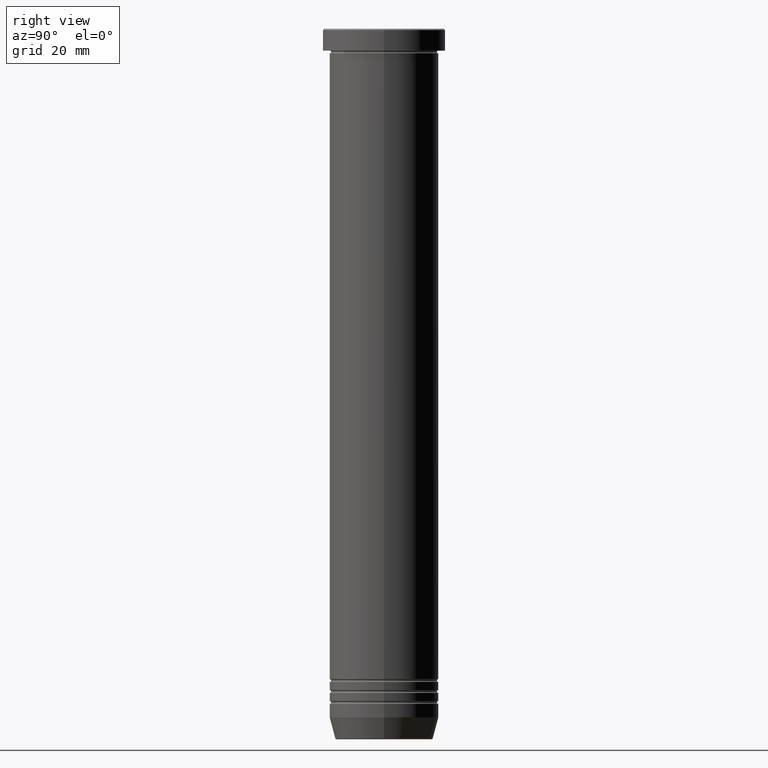
[diagram: clean part render]
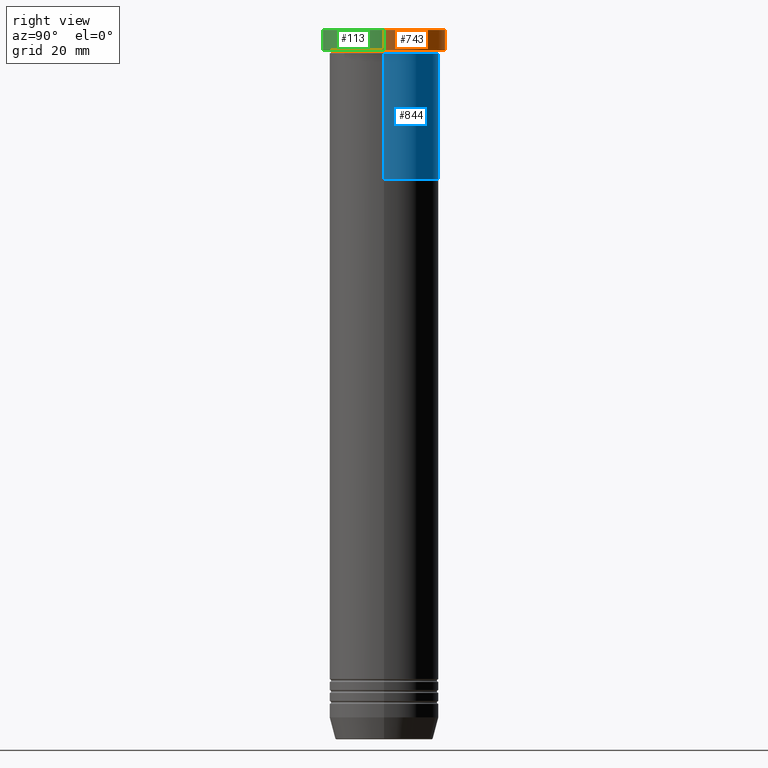
[diagram: same view with three faces highlighted in distinct colors, each labeled with its STEP entity id]
A machine part, right view with three faces highlighted in distinct colors.
Their STEP definitions:

[orange] entity #743 — the highlighted cylindrical surface (partial cylindrical patch) has radius 22.5 mm, axis along (-0, -0, 1).
#11 = EDGE_CURVE ( 'NONE', #399, #352, #525, .T. ) ;
#51 = DIRECTION ( 'NONE',  ( 1.000000000000000000, 0.000000000000000000, 0.000000000000000000 ) ) ;
#95 = ORIENTED_EDGE ( 'NONE', *, *, #451, .F. ) ;
#172 = ORIENTED_EDGE ( 'NONE', *, *, #11, .T. ) ;
#182 = VECTOR ( 'NONE', #518, 1000.000000000000000 ) ;
#193 = DIRECTION ( 'NONE',  ( 0.000000000000000000, 0.000000000000000000, -1.000000000000000000 ) ) ;
#194 = VERTEX_POINT ( 'NONE', #232 ) ;
#204 = CARTESIAN_POINT ( 'NONE',  ( 22.50000000000000000, 0.000000000000000000, 0.000000000000000000 ) ) ;
#232 = CARTESIAN_POINT ( 'NONE',  ( -22.50000000000000000, 2.755455298081544778E-15, -7.999999999999998224 ) ) ;
#254 = DIRECTION ( 'NONE',  ( 1.000000000000000000, 0.000000000000000000, 0.000000000000000000 ) ) ;
#306 = CARTESIAN_POINT ( 'NONE',  ( -22.50000000000000000, 2.755455298081544778E-15, -0.5000000000000212053 ) ) ;
#337 = LINE ( 'NONE', #734, #443 ) ;
#350 = EDGE_LOOP ( 'NONE', ( #1043, #616, #172, #95 ) ) ;
#352 = VERTEX_POINT ( 'NONE', #947 ) ;
#399 = VERTEX_POINT ( 'NONE', #306 ) ;
#443 = VECTOR ( 'NONE', #585, 1000.000000000000000 ) ;
#451 = EDGE_CURVE ( 'NONE', #889, #352, #626, .T. ) ;
#518 = DIRECTION ( 'NONE',  ( -0.000000000000000000, -0.000000000000000000, 1.000000000000000000 ) ) ;
#525 = CIRCLE ( 'NONE', #893, 22.50000000000000000 ) ;
#583 = FACE_OUTER_BOUND ( 'NONE', #350, .T. ) ;
#585 = DIRECTION ( 'NONE',  ( -0.000000000000000000, -0.000000000000000000, 1.000000000000000000 ) ) ;
#616 = ORIENTED_EDGE ( 'NONE', *, *, #972, .T. ) ;
#626 = LINE ( 'NONE', #204, #182 ) ;
#640 = CARTESIAN_POINT ( 'NONE',  ( 22.50000000000000000, 0.000000000000000000, -7.999999999999998224 ) ) ;
#734 = CARTESIAN_POINT ( 'NONE',  ( -22.50000000000000000, 2.755455298081544778E-15, 0.000000000000000000 ) ) ;
#743 = ADVANCED_FACE ( 'NONE', ( #583 ), #984, .T. ) ;
#827 = AXIS2_PLACEMENT_3D ( 'NONE', #828, #922, #254 ) ;
#828 = CARTESIAN_POINT ( 'NONE',  ( 0.000000000000000000, 0.000000000000000000, 0.000000000000000000 ) ) ;
#881 = DIRECTION ( 'NONE',  ( -0.000000000000000000, -0.000000000000000000, 1.000000000000000000 ) ) ;
#889 = VERTEX_POINT ( 'NONE', #640 ) ;
#893 = AXIS2_PLACEMENT_3D ( 'NONE', #999, #193, #1005 ) ;
#902 = EDGE_CURVE ( 'NONE', #889, #194, #936, .T. ) ;
#922 = DIRECTION ( 'NONE',  ( -0.000000000000000000, -0.000000000000000000, 1.000000000000000000 ) ) ;
#936 = CIRCLE ( 'NONE', #985, 22.50000000000000000 ) ;
#947 = CARTESIAN_POINT ( 'NONE',  ( 22.50000000000000000, 0.000000000000000000, -0.5000000000000212053 ) ) ;
#960 = CARTESIAN_POINT ( 'NONE',  ( 0.000000000000000000, 0.000000000000000000, -7.999999999999998224 ) ) ;
#972 = EDGE_CURVE ( 'NONE', #194, #399, #337, .T. ) ;
#984 = CYLINDRICAL_SURFACE ( 'NONE', #827, 22.50000000000000000 ) ;
#985 = AXIS2_PLACEMENT_3D ( 'NONE', #960, #881, #51 ) ;
#999 = CARTESIAN_POINT ( 'NONE',  ( 0.000000000000000000, 0.000000000000000000, -0.5000000000000212053 ) ) ;
#1005 = DIRECTION ( 'NONE',  ( 1.000000000000000000, 0.000000000000000000, 0.000000000000000000 ) ) ;
#1043 = ORIENTED_EDGE ( 'NONE', *, *, #902, .T. ) ;

[blue] entity #844 — the highlighted cylindrical surface (partial cylindrical patch) has radius 20 mm, axis along (-0, -0, 1).
#23 = CARTESIAN_POINT ( 'NONE',  ( 0.000000000000000000, 0.000000000000000000, 0.000000000000000000 ) ) ;
#72 = VERTEX_POINT ( 'NONE', #775 ) ;
#186 = ORIENTED_EDGE ( 'NONE', *, *, #726, .F. ) ;
#195 = CARTESIAN_POINT ( 'NONE',  ( 0.000000000000000000, 0.000000000000000000, -9.000000000000001776 ) ) ;
#211 = CARTESIAN_POINT ( 'NONE',  ( 0.000000000000000000, 0.000000000000000000, -54.99999999999999289 ) ) ;
#281 = LINE ( 'NONE', #638, #738 ) ;
#304 = DIRECTION ( 'NONE',  ( 1.000000000000000000, 0.000000000000000000, 0.000000000000000000 ) ) ;
#346 = VERTEX_POINT ( 'NONE', #892 ) ;
#417 = FACE_OUTER_BOUND ( 'NONE', #962, .T. ) ;
#434 = DIRECTION ( 'NONE',  ( 1.000000000000000000, 0.000000000000000000, 0.000000000000000000 ) ) ;
#513 = ORIENTED_EDGE ( 'NONE', *, *, #519, .F. ) ;
#519 = EDGE_CURVE ( 'NONE', #562, #72, #620, .T. ) ;
#523 = ORIENTED_EDGE ( 'NONE', *, *, #938, .T. ) ;
#532 = EDGE_CURVE ( 'NONE', #346, #72, #281, .T. ) ;
#540 = DIRECTION ( 'NONE',  ( -0.000000000000000000, -0.000000000000000000, 1.000000000000000000 ) ) ;
#562 = VERTEX_POINT ( 'NONE', #849 ) ;
#573 = VECTOR ( 'NONE', #958, 1000.000000000000000 ) ;
#620 = CIRCLE ( 'NONE', #750, 20.00000000000000000 ) ;
#638 = CARTESIAN_POINT ( 'NONE',  ( -20.00000000000000000, 2.449293598294706513E-15, 0.000000000000000000 ) ) ;
#723 = CIRCLE ( 'NONE', #920, 20.00000000000000000 ) ;
#726 = EDGE_CURVE ( 'NONE', #731, #562, #739, .T. ) ;
#731 = VERTEX_POINT ( 'NONE', #949 ) ;
#738 = VECTOR ( 'NONE', #777, 1000.000000000000000 ) ;
#739 = LINE ( 'NONE', #1054, #573 ) ;
#750 = AXIS2_PLACEMENT_3D ( 'NONE', #195, #772, #304 ) ;
#772 = DIRECTION ( 'NONE',  ( -0.000000000000000000, -0.000000000000000000, 1.000000000000000000 ) ) ;
#775 = CARTESIAN_POINT ( 'NONE',  ( -20.00000000000000000, 2.449293598294706513E-15, -9.000000000000001776 ) ) ;
#777 = DIRECTION ( 'NONE',  ( -0.000000000000000000, -0.000000000000000000, 1.000000000000000000 ) ) ;
#813 = ORIENTED_EDGE ( 'NONE', *, *, #532, .T. ) ;
#839 = AXIS2_PLACEMENT_3D ( 'NONE', #23, #846, #434 ) ;
#844 = ADVANCED_FACE ( 'NONE', ( #417 ), #1060, .T. ) ;
#846 = DIRECTION ( 'NONE',  ( -0.000000000000000000, -0.000000000000000000, 1.000000000000000000 ) ) ;
#849 = CARTESIAN_POINT ( 'NONE',  ( 20.00000000000000000, 0.000000000000000000, -9.000000000000001776 ) ) ;
#868 = DIRECTION ( 'NONE',  ( 1.000000000000000000, 0.000000000000000000, 0.000000000000000000 ) ) ;
#892 = CARTESIAN_POINT ( 'NONE',  ( -20.00000000000000000, 2.449293598294706513E-15, -54.99999999999999289 ) ) ;
#920 = AXIS2_PLACEMENT_3D ( 'NONE', #211, #540, #868 ) ;
#938 = EDGE_CURVE ( 'NONE', #731, #346, #723, .T. ) ;
#949 = CARTESIAN_POINT ( 'NONE',  ( 20.00000000000000000, 0.000000000000000000, -54.99999999999999289 ) ) ;
#958 = DIRECTION ( 'NONE',  ( -0.000000000000000000, -0.000000000000000000, 1.000000000000000000 ) ) ;
#962 = EDGE_LOOP ( 'NONE', ( #523, #813, #513, #186 ) ) ;
#1054 = CARTESIAN_POINT ( 'NONE',  ( 20.00000000000000000, 0.000000000000000000, 0.000000000000000000 ) ) ;
#1060 = CYLINDRICAL_SURFACE ( 'NONE', #839, 20.00000000000000000 ) ;

[green] entity #113 — the highlighted cylindrical surface (partial cylindrical patch) has radius 22.5 mm, axis along (-0, -0, 1).
#18 = FACE_OUTER_BOUND ( 'NONE', #85, .T. ) ;
#59 = AXIS2_PLACEMENT_3D ( 'NONE', #696, #975, #323 ) ;
#85 = EDGE_LOOP ( 'NONE', ( #869, #779, #265, #285 ) ) ;
#94 = CIRCLE ( 'NONE', #221, 22.50000000000000000 ) ;
#97 = AXIS2_PLACEMENT_3D ( 'NONE', #754, #424, #432 ) ;
#113 = ADVANCED_FACE ( 'NONE', ( #18 ), #284, .T. ) ;
#182 = VECTOR ( 'NONE', #518, 1000.000000000000000 ) ;
#191 = DIRECTION ( 'NONE',  ( 1.000000000000000000, 0.000000000000000000, 0.000000000000000000 ) ) ;
#194 = VERTEX_POINT ( 'NONE', #232 ) ;
#196 = DIRECTION ( 'NONE',  ( 0.000000000000000000, 0.000000000000000000, -1.000000000000000000 ) ) ;
#204 = CARTESIAN_POINT ( 'NONE',  ( 22.50000000000000000, 0.000000000000000000, 0.000000000000000000 ) ) ;
#221 = AXIS2_PLACEMENT_3D ( 'NONE', #924, #196, #191 ) ;
#232 = CARTESIAN_POINT ( 'NONE',  ( -22.50000000000000000, 2.755455298081544778E-15, -7.999999999999998224 ) ) ;
#265 = ORIENTED_EDGE ( 'NONE', *, *, #451, .T. ) ;
#276 = EDGE_CURVE ( 'NONE', #352, #399, #94, .T. ) ;
#284 = CYLINDRICAL_SURFACE ( 'NONE', #59, 22.50000000000000000 ) ;
#285 = ORIENTED_EDGE ( 'NONE', *, *, #276, .T. ) ;
#306 = CARTESIAN_POINT ( 'NONE',  ( -22.50000000000000000, 2.755455298081544778E-15, -0.5000000000000212053 ) ) ;
#323 = DIRECTION ( 'NONE',  ( 1.000000000000000000, 0.000000000000000000, 0.000000000000000000 ) ) ;
#337 = LINE ( 'NONE', #734, #443 ) ;
#352 = VERTEX_POINT ( 'NONE', #947 ) ;
#399 = VERTEX_POINT ( 'NONE', #306 ) ;
#424 = DIRECTION ( 'NONE',  ( -0.000000000000000000, -0.000000000000000000, 1.000000000000000000 ) ) ;
#432 = DIRECTION ( 'NONE',  ( 1.000000000000000000, 0.000000000000000000, 0.000000000000000000 ) ) ;
#443 = VECTOR ( 'NONE', #585, 1000.000000000000000 ) ;
#451 = EDGE_CURVE ( 'NONE', #889, #352, #626, .T. ) ;
#518 = DIRECTION ( 'NONE',  ( -0.000000000000000000, -0.000000000000000000, 1.000000000000000000 ) ) ;
#575 = CIRCLE ( 'NONE', #97, 22.50000000000000000 ) ;
#585 = DIRECTION ( 'NONE',  ( -0.000000000000000000, -0.000000000000000000, 1.000000000000000000 ) ) ;
#626 = LINE ( 'NONE', #204, #182 ) ;
#640 = CARTESIAN_POINT ( 'NONE',  ( 22.50000000000000000, 0.000000000000000000, -7.999999999999998224 ) ) ;
#696 = CARTESIAN_POINT ( 'NONE',  ( 0.000000000000000000, 0.000000000000000000, 0.000000000000000000 ) ) ;
#734 = CARTESIAN_POINT ( 'NONE',  ( -22.50000000000000000, 2.755455298081544778E-15, 0.000000000000000000 ) ) ;
#754 = CARTESIAN_POINT ( 'NONE',  ( 0.000000000000000000, 0.000000000000000000, -7.999999999999998224 ) ) ;
#779 = ORIENTED_EDGE ( 'NONE', *, *, #1026, .T. ) ;
#869 = ORIENTED_EDGE ( 'NONE', *, *, #972, .F. ) ;
#889 = VERTEX_POINT ( 'NONE', #640 ) ;
#924 = CARTESIAN_POINT ( 'NONE',  ( 0.000000000000000000, 0.000000000000000000, -0.5000000000000212053 ) ) ;
#947 = CARTESIAN_POINT ( 'NONE',  ( 22.50000000000000000, 0.000000000000000000, -0.5000000000000212053 ) ) ;
#972 = EDGE_CURVE ( 'NONE', #194, #399, #337, .T. ) ;
#975 = DIRECTION ( 'NONE',  ( -0.000000000000000000, -0.000000000000000000, 1.000000000000000000 ) ) ;
#1026 = EDGE_CURVE ( 'NONE', #194, #889, #575, .T. ) ;